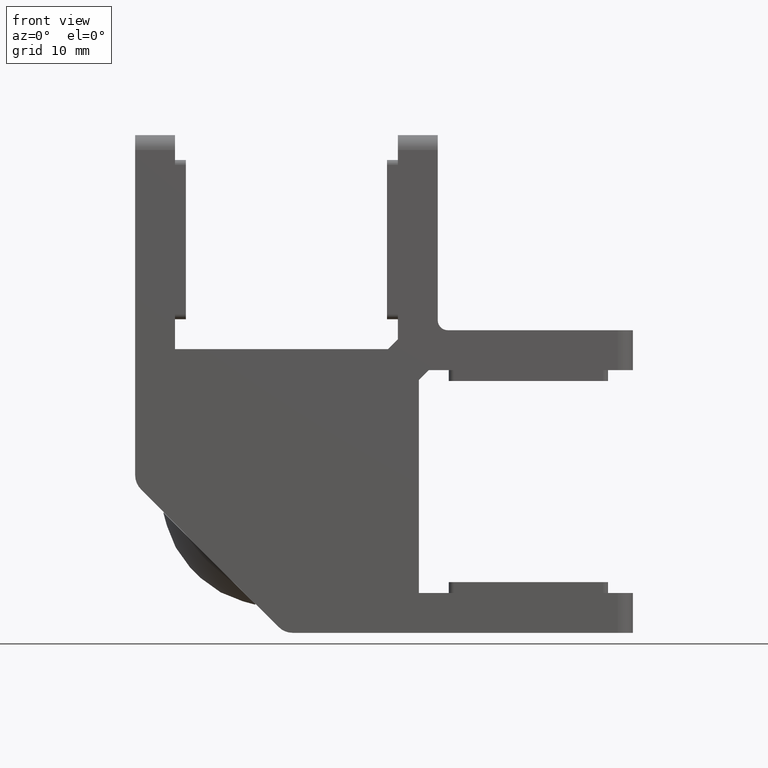
[diagram: clean part render]
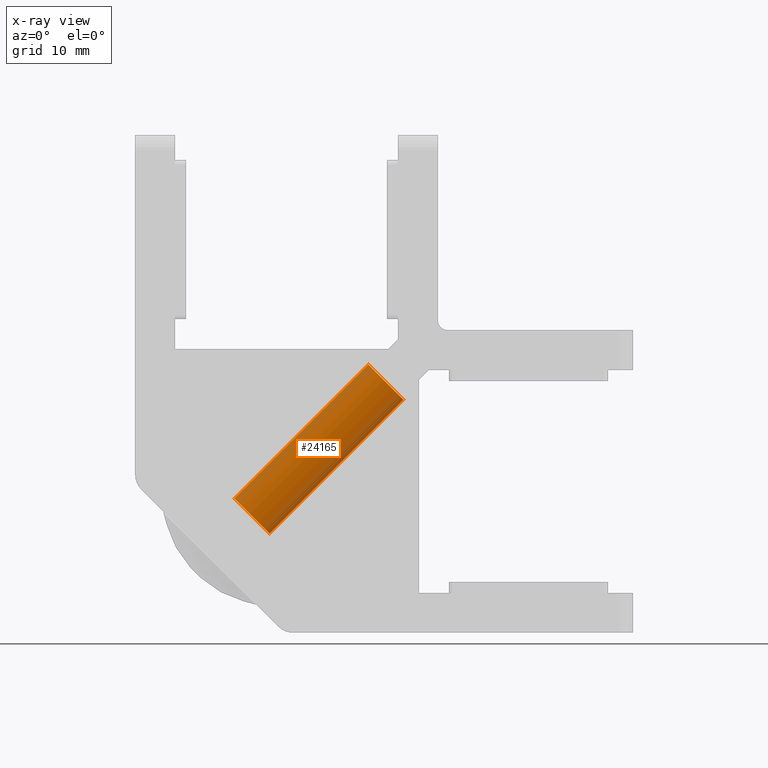
[diagram: x-ray — body ghosted, one internal face saturated and labeled with its STEP entity id]
A machine part, front view, then the same camera in x-ray: the body is ghosted and one INTERNAL B-rep face — a face not visible from any outside direction — is saturated and labeled: STEP entity #24165.
In plain terms, the highlighted cylindrical surface (bore or boss wall) has radius 2.5 mm, axis along (-0.7071, -0, -0.7071).
Its self-contained STEP definition (entity closure, byte-faithful):
#2290 = FACE_OUTER_BOUND ( 'NONE', #14002, .T. ) ;
#4930 = AXIS2_PLACEMENT_3D ( 'NONE', #22539, #8632, #52910 ) ;
#6942 = DIRECTION ( 'NONE',  ( 0.7071067811865506814, 0.000000000000000000, -0.7071067811865443531 ) ) ;
#6975 = DIRECTION ( 'NONE',  ( -0.7071067811865445751, -0.000000000000000000, -0.7071067811865504593 ) ) ;
#7549 = FACE_OUTER_BOUND ( 'NONE', #42539, .T. ) ;
#8632 = DIRECTION ( 'NONE',  ( -0.7071067811865445751, -0.000000000000000000, -0.7071067811865504593 ) ) ;
#9729 = VERTEX_POINT ( 'NONE', #52089 ) ;
#13587 = CYLINDRICAL_SURFACE ( 'NONE', #4930, 2.499999999999992450 ) ;
#14002 = EDGE_LOOP ( 'NONE', ( #55290 ) ) ;
#17961 = VERTEX_POINT ( 'NONE', #27424 ) ;
#22539 = CARTESIAN_POINT ( 'NONE',  ( 10.33000000000004270, 0.000000000000000000, 10.33000000000000185 ) ) ;
#24165 = ADVANCED_FACE ( 'NONE', ( #2290, #7549 ), #13587, .F. ) ;
#27424 = CARTESIAN_POINT ( 'NONE',  ( 13.51198051533949851, 0.000000000000000000, 9.976446609406742994 ) ) ;
#27743 = EDGE_CURVE ( 'NONE', #9729, #9729, #50313, .T. ) ;
#30790 = CARTESIAN_POINT ( 'NONE',  ( 11.74421356237312786, 0.000000000000000000, 11.74421356237309944 ) ) ;
#35444 = CIRCLE ( 'NONE', #35604, 2.499999999999992450 ) ;
#35604 = AXIS2_PLACEMENT_3D ( 'NONE', #30790, #35848, #6942 ) ;
#35848 = DIRECTION ( 'NONE',  ( -0.7071067811865445751, 0.000000000000000000, -0.7071067811865505703 ) ) ;
#40984 = AXIS2_PLACEMENT_3D ( 'NONE', #45189, #6975, #54459 ) ;
#42539 = EDGE_LOOP ( 'NONE', ( #59463 ) ) ;
#45189 = CARTESIAN_POINT ( 'NONE',  ( 25.17924240491747767, 0.000000000000000000, 25.17924240491756294 ) ) ;
#50313 = CIRCLE ( 'NONE', #40984, 2.499999999999996003 ) ;
#52089 = CARTESIAN_POINT ( 'NONE',  ( 23.41147545195110524, 0.000000000000000000, 26.94700935788392115 ) ) ;
#52910 = DIRECTION ( 'NONE',  ( -0.7071067811865506814, 0.000000000000000000, 0.7071067811865443531 ) ) ;
#54459 = DIRECTION ( 'NONE',  ( -0.7071067811865502373, 0.000000000000000000, 0.7071067811865447972 ) ) ;
#55290 = ORIENTED_EDGE ( 'NONE', *, *, #57790, .T. ) ;
#57790 = EDGE_CURVE ( 'NONE', #17961, #17961, #35444, .T. ) ;
#59463 = ORIENTED_EDGE ( 'NONE', *, *, #27743, .F. ) ;